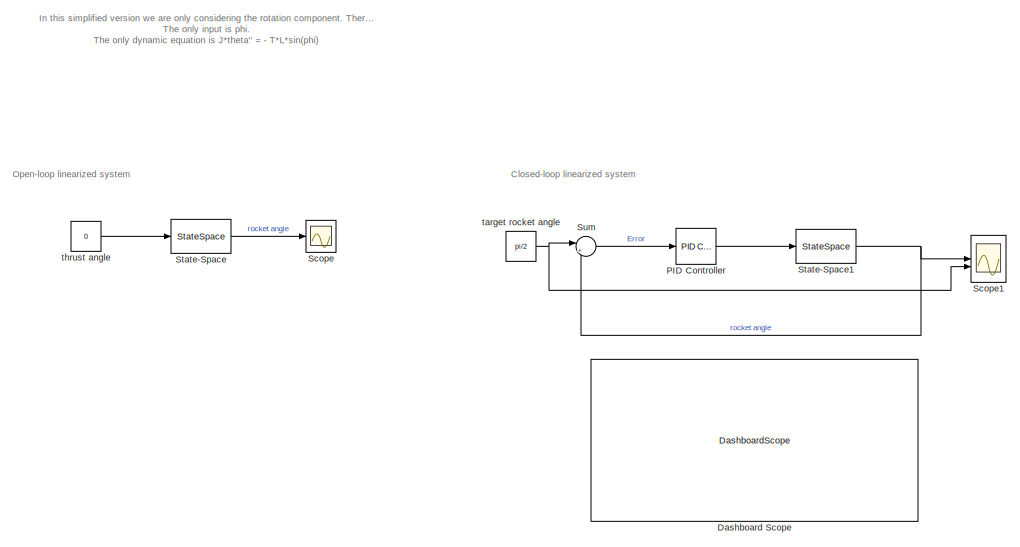
[diagram: root canvas - part 1/2, left side, full height]
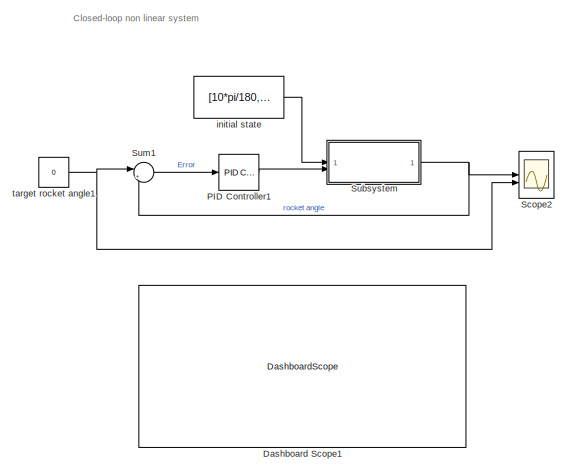
[diagram: root canvas - part 2/2, right side, full height]
MODEL slx_d68338a2b587
KIND model
CONFIG AbsTol = auto
CONFIG EnableMultiTasking = off
CONFIG FixedStep = auto
CONFIG MaxStep = auto
CONFIG MinStep = auto
CONFIG RelTol = 1e-3
CONFIG SampleTimeConstraint = Unconstrained
CONFIG SolverName = VariableStepAuto
CONFIG StartTime = 0.0
CONFIG StopTime = 20.0
BLOCK [DashboardScope] Dashboard Scope
BLOCK [DashboardScope] Dashboard Scope1
BLOCK [Reference] PID Controller  REF=slpidlib/PID Controller
  LibrarySourceBlock = simulink/Continuous/PID Controller
  SourceBlock = slpidlib/PID Controller
  SourceType = PID 1dof
BLOCK [Reference] PID Controller1  REF=slpidlib/PID Controller
  LibrarySourceBlock = simulink/Continuous/PID Controller
  SourceBlock = slpidlib/PID Controller
  SourceType = PID 1dof
BLOCK [Scope] Scope
  Floating = off
  NumInputPorts = 1
  ScopeSpecificationString = Simulink.scopes.TimeScopeBlockCfg('CurrentConfiguration', extmgr.ConfigurationSet(extmgr.Configuration('Core','General UI',true),extmgr.Configuration('Core','Source UI',true),extmgr.Configuration('Sources','WiredSimulink',true),extmgr.Configuration('Visuals','Time Domain',true,'SerializedDisplays',{struct('MinYLimReal','-1.00000','MaxYLimReal','1.00000','YLabelReal','','MinYLimMag','0.00000','MaxY...<+1421ch>
BLOCK [Scope] Scope1
  Floating = off
  NumInputPorts = 2
  ScopeSpecificationString = Simulink.scopes.TimeScopeBlockCfg('CurrentConfiguration', extmgr.ConfigurationSet(extmgr.Configuration('Core','General UI',true),extmgr.Configuration('Core','Source UI',true),extmgr.Configuration('Sources','WiredSimulink',true,'DataLoggingVariableName','ScopeData1'),extmgr.Configuration('Visuals','Time Domain',true,'SerializedDisplays',{struct('MinYLimReal','0.68294','MaxYLimReal','1.70755','YLabe...<+1480ch>
BLOCK [Scope] Scope2
  Floating = off
  NumInputPorts = 2
  ScopeSpecificationString = Simulink.scopes.TimeScopeBlockCfg('CurrentConfiguration', extmgr.ConfigurationSet(extmgr.Configuration('Core','General UI',true),extmgr.Configuration('Core','Source UI',true),extmgr.Configuration('Sources','WiredSimulink',true,'DataLoggingVariableName','ScopeData2'),extmgr.Configuration('Visuals','Time Domain',true,'SerializedDisplays',{struct('MinYLimReal','0.68291','MaxYLimReal','1.70781','YLabe...<+1480ch>
BLOCK [StateSpace] State-Space
  A = A
  B = B
  C = C
  D = D
  InitialCondition = [0, 0]
BLOCK [StateSpace] State-Space1
  A = A
  B = B
  C = C
  D = D
  InitialCondition = [pi/4, 0]
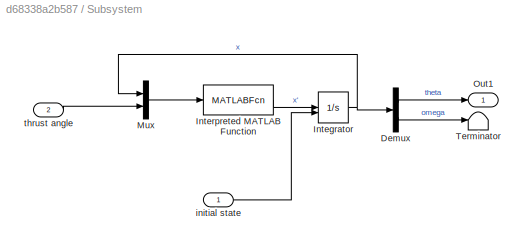
BLOCK [SubSystem] Subsystem
BLOCK [Demux] Subsystem/Demux
  Outputs = 2
BLOCK [Integrator] Subsystem/Integrator
  InitialConditionSource = external
BLOCK [MATLABFcn] Subsystem/Interpreted MATLAB Function
  MATLABFcn = non_linear_dynamic_simplified
BLOCK [Mux] Subsystem/Mux
  DisplayOption = bar
  Inputs = 2
BLOCK [Outport] Subsystem/Out1
BLOCK [Terminator] Subsystem/Terminator
BLOCK [Inport] Subsystem/initial state
BLOCK [Inport] Subsystem/thrust angle
  Port = 2
BLOCK [Sum] Sum
  Inputs = |+-
BLOCK [Sum] Sum1
  Inputs = |+-
BLOCK [Constant] initial state
  Value = [10*pi/180,0]
BLOCK [Constant] target rocket angle
  Value = pi/2
BLOCK [Constant] target rocket angle1
  Value = 0
BLOCK [Constant] thrust angle
  Value = 0
ANNOTATION (root): Closed-loop linearized system
ANNOTATION (root): Closed-loop non linear system
ANNOTATION (root): Open-loop linearized system
ANNOTATION (root): In this simplified version we are only considering the rotation component. Therefore, the only two state variables are theta and theta'. The only input is phi. The only dynamic equation is J*theta'' = - T*L*sin(phi)
LINE PID Controller1:1 -> Subsystem:2
LINE PID Controller:1 -> State-Space1:1
NET State-Space1:1 -> Scope1:1, Sum:2
LINE State-Space:1 -> Scope:1
LINE Subsystem/Demux:1 -> Subsystem/Out1:1
LINE Subsystem/Demux:2 -> Subsystem/Terminator:1
NET Subsystem/Integrator:1 -> Subsystem/Demux:1, Subsystem/Mux:1
LINE Subsystem/Interpreted MATLAB Function:1 -> Subsystem/Integrator:1
LINE Subsystem/Mux:1 -> Subsystem/Interpreted MATLAB Function:1
LINE Subsystem/initial state:1 -> Subsystem/Integrator:2
LINE Subsystem/thrust angle:1 -> Subsystem/Mux:2
NET Subsystem:1 -> Scope2:1, Sum1:2
LINE Sum1:1 -> PID Controller1:1
LINE Sum:1 -> PID Controller:1
LINE initial state:1 -> Subsystem:1
NET target rocket angle1:1 -> Scope2:2, Sum1:1
NET target rocket angle:1 -> Scope1:2, Sum:1
LINE thrust angle:1 -> State-Space:1
note: NET lines group one-source signal fan-out (src -> all destinations, sorted); 1:1 wires keep LINE
